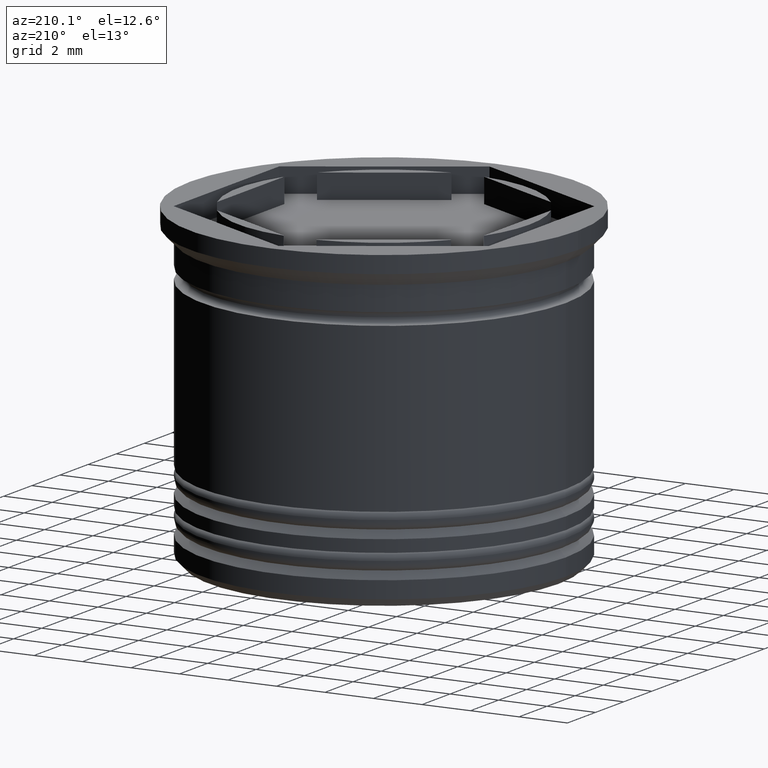
[diagram: clean part render]
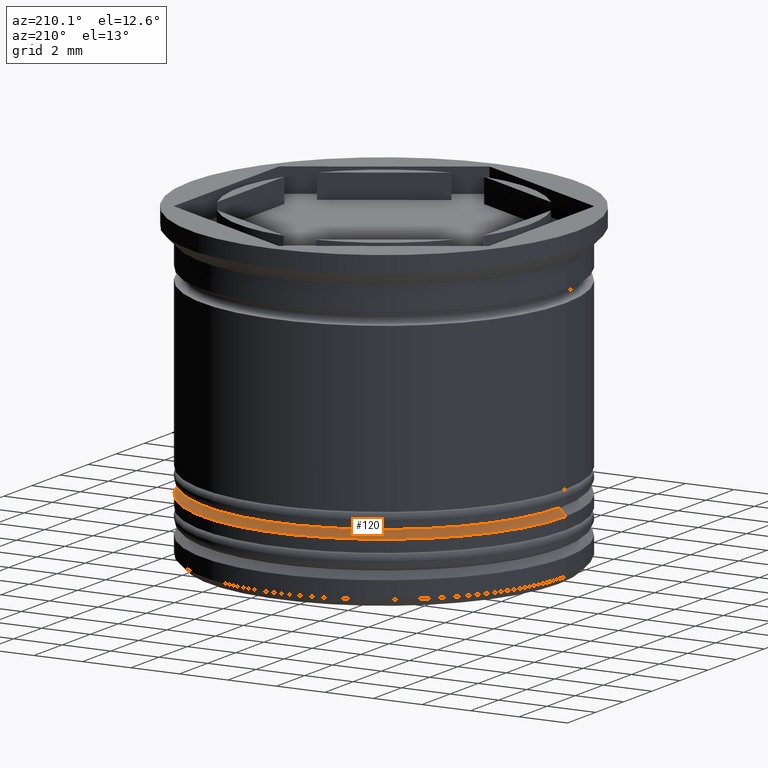
[diagram: same view with one face highlighted and labeled with its STEP entity id]
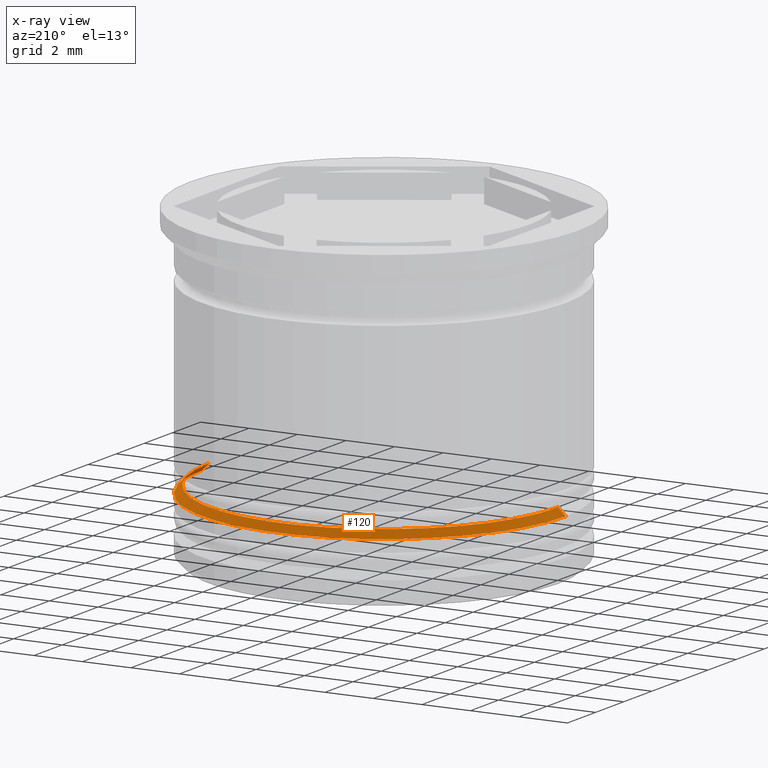
[diagram: x-ray of the same camera — body ghosted, the highlighted face saturated]
A machine part, auxiliary view. The second image highlights one B-rep face of the part: STEP entity #120.
The next image is the same camera in x-ray: the body ghosted, the highlighted face saturated — about 2% of this face is hidden behind the body in this view.
In plain terms, the highlighted conical surface has half-angle 45 deg.
Its self-contained STEP definition (entity closure, byte-faithful):
#13 = DIRECTION ( 'NONE',  ( -1.000000000000000000, 0.000000000000000000, 0.000000000000000000 ) ) ;
#53 = ORIENTED_EDGE ( 'NONE', *, *, #1736, .F. ) ;
#60 = CARTESIAN_POINT ( 'NONE',  ( 0.000000000000000000, 0.000000000000000000, -10.50000000000000355 ) ) ;
#105 = EDGE_CURVE ( 'NONE', #208, #249, #1343, .T. ) ;
#120 = ADVANCED_FACE ( 'NONE', ( #923 ), #189, .T. ) ;
#171 = VERTEX_POINT ( 'NONE', #1268 ) ;
#189 = CONICAL_SURFACE ( 'NONE', #1309, 6.999999999999992006, 0.7853981633974533860 ) ;
#204 = VERTEX_POINT ( 'NONE', #553 ) ;
#208 = VERTEX_POINT ( 'NONE', #1941 ) ;
#235 = CARTESIAN_POINT ( 'NONE',  ( -7.200000000000000178, 8.817456953860942303E-16, -10.20000000000000639 ) ) ;
#249 = VERTEX_POINT ( 'NONE', #235 ) ;
#302 = EDGE_CURVE ( 'NONE', #249, #204, #980, .T. ) ;
#450 = DIRECTION ( 'NONE',  ( 0.7071067811865512365, 8.659560562354978464E-17, -0.7071067811865439090 ) ) ;
#539 = CARTESIAN_POINT ( 'NONE',  ( -6.999999999999992006, 0.000000000000000000, -10.00000000000000000 ) ) ;
#553 = CARTESIAN_POINT ( 'NONE',  ( -7.500000000000001776, 9.184850993605149917E-16, -10.50000000000000355 ) ) ;
#594 = DIRECTION ( 'NONE',  ( -0.000000000000000000, -0.000000000000000000, 1.000000000000000000 ) ) ;
#680 = DIRECTION ( 'NONE',  ( -1.000000000000000000, 0.000000000000000000, 0.000000000000000000 ) ) ;
#698 = VECTOR ( 'NONE', #1901, 1000.000000000000000 ) ;
#826 = DIRECTION ( 'NONE',  ( 0.000000000000000000, 0.000000000000000000, -1.000000000000000000 ) ) ;
#849 = ORIENTED_EDGE ( 'NONE', *, *, #1200, .T. ) ;
#864 = ORIENTED_EDGE ( 'NONE', *, *, #302, .F. ) ;
#923 = FACE_OUTER_BOUND ( 'NONE', #1721, .T. ) ;
#931 = VECTOR ( 'NONE', #450, 1000.000000000000000 ) ;
#980 = LINE ( 'NONE', #539, #698 ) ;
#1123 = CIRCLE ( 'NONE', #1830, 7.500000000000001776 ) ;
#1141 = AXIS2_PLACEMENT_3D ( 'NONE', #1396, #594, #13 ) ;
#1200 = EDGE_CURVE ( 'NONE', #208, #171, #1662, .T. ) ;
#1268 = CARTESIAN_POINT ( 'NONE',  ( 7.500000000000001776, 0.000000000000000000, -10.50000000000000355 ) ) ;
#1309 = AXIS2_PLACEMENT_3D ( 'NONE', #1559, #826, #680 ) ;
#1343 = CIRCLE ( 'NONE', #1141, 7.200000000000000178 ) ;
#1396 = CARTESIAN_POINT ( 'NONE',  ( 0.000000000000000000, 0.000000000000000000, -10.20000000000000639 ) ) ;
#1550 = DIRECTION ( 'NONE',  ( 0.000000000000000000, 0.000000000000000000, -1.000000000000000000 ) ) ;
#1559 = CARTESIAN_POINT ( 'NONE',  ( 0.000000000000000000, 0.000000000000000000, -10.00000000000000000 ) ) ;
#1662 = LINE ( 'NONE', #1967, #931 ) ;
#1721 = EDGE_LOOP ( 'NONE', ( #1809, #849, #53, #864 ) ) ;
#1736 = EDGE_CURVE ( 'NONE', #204, #171, #1123, .T. ) ;
#1809 = ORIENTED_EDGE ( 'NONE', *, *, #105, .F. ) ;
#1830 = AXIS2_PLACEMENT_3D ( 'NONE', #60, #1550, #1881 ) ;
#1881 = DIRECTION ( 'NONE',  ( -1.000000000000000000, 0.000000000000000000, 0.000000000000000000 ) ) ;
#1901 = DIRECTION ( 'NONE',  ( -0.7071067811865512365, 0.000000000000000000, -0.7071067811865439090 ) ) ;
#1941 = CARTESIAN_POINT ( 'NONE',  ( 7.200000000000000178, 0.000000000000000000, -10.20000000000000639 ) ) ;
#1967 = CARTESIAN_POINT ( 'NONE',  ( 6.999999999999992006, 8.572527594031463329E-16, -10.00000000000000000 ) ) ;